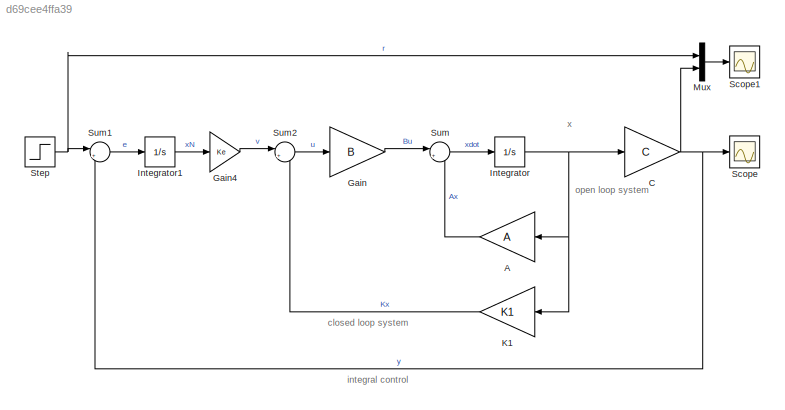
MODEL slx_d69cee4ffa39
KIND model
CONFIG AbsTol = auto
CONFIG EnableMultiTasking = off
CONFIG FixedStep = auto
CONFIG MaxStep = auto
CONFIG MinStep = auto
CONFIG RelTol = 1e-3
CONFIG SampleTimeConstraint = Unconstrained
CONFIG SolverName = VariableStepAuto
CONFIG StartTime = 0.0
CONFIG StopTime = 10.0
BLOCK [Gain] A
  Gain = A
  Multiplication = Matrix(K*u) (u vector)
  NameLocation = top
BLOCK [Gain] C
  Gain = C
  Multiplication = Matrix(K*u) (u vector)
BLOCK [Gain] Gain
  Gain = B
  Multiplication = Matrix(K*u) (u vector)
BLOCK [Gain] Gain4
  Gain = Ke
BLOCK [Integrator] Integrator
BLOCK [Integrator] Integrator1
BLOCK [Gain] K1
  Gain = K1
  Multiplication = Matrix(K*u) (u vector)
  NameLocation = top
BLOCK [Mux] Mux
  DisplayOption = bar
  Inputs = 2
BLOCK [Scope] Scope
  Floating = off
  NumInputPorts = 1
  ScopeSpecificationString = Simulink.scopes.TimeScopeBlockCfg('CurrentConfiguration', extmgr.ConfigurationSet(extmgr.Configuration('Core','General UI',true),extmgr.Configuration('Core','Source UI',true),extmgr.Configuration('Sources','WiredSimulink',true),extmgr.Configuration('Visuals','Time Domain',true,'SerializedDisplays',{struct('MinYLimReal','-0.1371','MaxYLimReal','1.23391','YLabelReal','','MinYLimMag','0.00000','MaxYL...<+1352ch>
BLOCK [Scope] Scope1
  Floating = off
  NumInputPorts = 1
  ScopeSpecificationString = Simulink.scopes.TimeScopeBlockCfg('CurrentConfiguration', extmgr.ConfigurationSet(extmgr.Configuration('Core','General UI',true),extmgr.Configuration('Core','Source UI',true),extmgr.Configuration('Sources','WiredSimulink',true,'DataLoggingVariableName','ScopeData1'),extmgr.Configuration('Visuals','Time Domain',true,'SerializedDisplays',{struct('MinYLimReal','-0.1371','MaxYLimReal','1.23391','YLabe...<+1395ch>
BLOCK [Step] Step
  SampleTime = 0
BLOCK [Sum] Sum
  Inputs = |++
BLOCK [Sum] Sum1
  Inputs = |+-
BLOCK [Sum] Sum2
  Inputs = |+-
ANNOTATION (root): closed loop system
ANNOTATION (root): integral control
ANNOTATION (root): open loop system
ANNOTATION (root): x
LINE A:1 -> Sum:2
NET C:1 -> Mux:2, Scope:1, Sum1:2
LINE Gain4:1 -> Sum2:1
LINE Gain:1 -> Sum:1
LINE Integrator1:1 -> Gain4:1
NET Integrator:1 -> A:1, C:1, K1:1
LINE K1:1 -> Sum2:2
LINE Mux:1 -> Scope1:1
NET Step:1 -> Mux:1, Sum1:1
LINE Sum1:1 -> Integrator1:1
LINE Sum2:1 -> Gain:1
LINE Sum:1 -> Integrator:1
note: NET lines group one-source signal fan-out (src -> all destinations, sorted); 1:1 wires keep LINE
